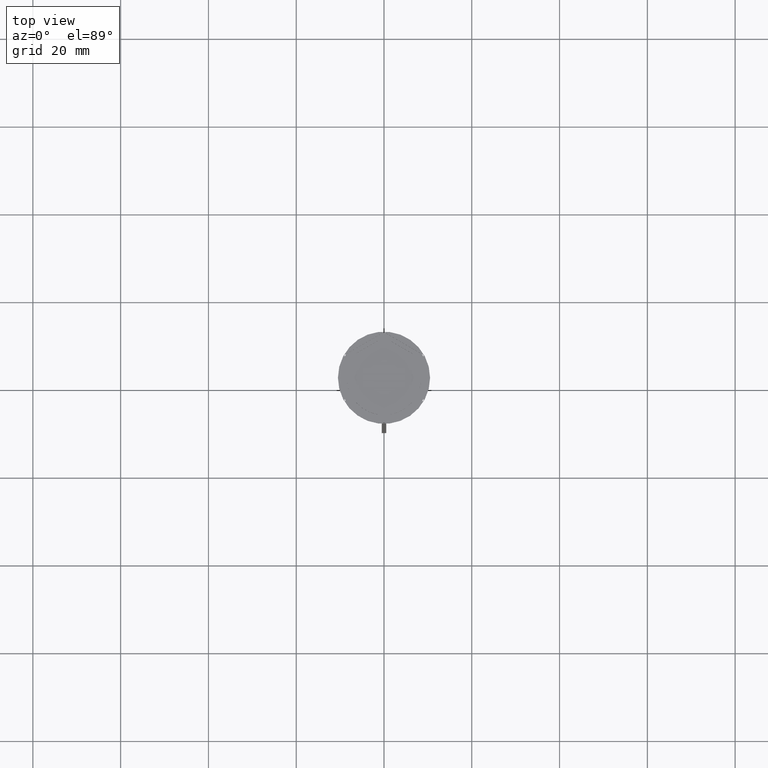
[diagram: clean part render]
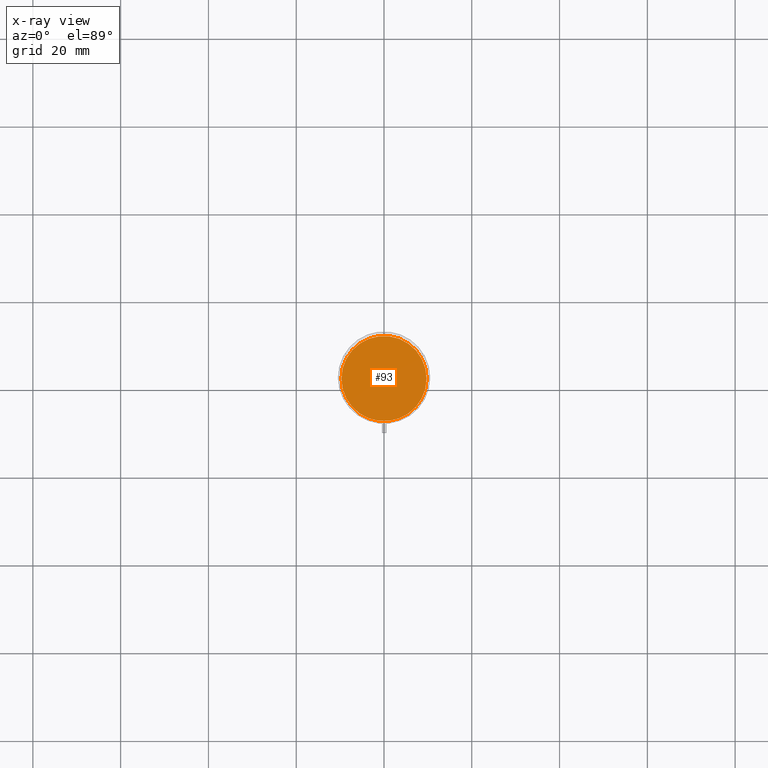
[diagram: x-ray — body ghosted, one internal face saturated and labeled with its STEP entity id]
A machine part, top view, then the same camera in x-ray: the body is ghosted and one INTERNAL B-rep face — a face not visible from any outside direction — is saturated and labeled: STEP entity #93.
In plain terms, the highlighted planar face has unit normal (0, 0, -1).
Its self-contained STEP definition (entity closure, byte-faithful):
#63 = EDGE_CURVE ( 'NONE', #842, #1588, #1096, .T. ) ;
#77 = CARTESIAN_POINT ( 'NONE',  ( 0.000000000000000000, 0.000000000000000000, -12.00000000000000000 ) ) ;
#93 = ADVANCED_FACE ( 'NONE', ( #2468 ), #710, .F. ) ;
#103 = DIRECTION ( 'NONE',  ( 0.000000000000000000, 0.000000000000000000, -1.000000000000000000 ) ) ;
#438 = EDGE_LOOP ( 'NONE', ( #1948, #510 ) ) ;
#485 = EDGE_CURVE ( 'NONE', #1588, #842, #2196, .T. ) ;
#510 = ORIENTED_EDGE ( 'NONE', *, *, #485, .T. ) ;
#710 = PLANE ( 'NONE',  #761 ) ;
#761 = AXIS2_PLACEMENT_3D ( 'NONE', #1880, #103, #1492 ) ;
#771 = CARTESIAN_POINT ( 'NONE',  ( 9.700000000000002842, 1.206277097160143024E-15, -12.00000000000000000 ) ) ;
#842 = VERTEX_POINT ( 'NONE', #919 ) ;
#910 = CARTESIAN_POINT ( 'NONE',  ( 0.000000000000000000, 0.000000000000000000, -12.00000000000000000 ) ) ;
#919 = CARTESIAN_POINT ( 'NONE',  ( -9.700000000000002842, 0.000000000000000000, -12.00000000000000000 ) ) ;
#1096 = CIRCLE ( 'NONE', #1843, 9.700000000000002842 ) ;
#1492 = DIRECTION ( 'NONE',  ( -1.000000000000000000, 0.000000000000000000, -0.000000000000000000 ) ) ;
#1588 = VERTEX_POINT ( 'NONE', #771 ) ;
#1702 = DIRECTION ( 'NONE',  ( -0.000000000000000000, -0.000000000000000000, 1.000000000000000000 ) ) ;
#1715 = AXIS2_PLACEMENT_3D ( 'NONE', #910, #1702, #2513 ) ;
#1843 = AXIS2_PLACEMENT_3D ( 'NONE', #77, #2087, #2096 ) ;
#1880 = CARTESIAN_POINT ( 'NONE',  ( 0.000000000000000000, 0.000000000000000000, -12.00000000000000000 ) ) ;
#1948 = ORIENTED_EDGE ( 'NONE', *, *, #63, .T. ) ;
#2087 = DIRECTION ( 'NONE',  ( -0.000000000000000000, -0.000000000000000000, 1.000000000000000000 ) ) ;
#2096 = DIRECTION ( 'NONE',  ( -1.000000000000000000, 0.000000000000000000, 0.000000000000000000 ) ) ;
#2196 = CIRCLE ( 'NONE', #1715, 9.700000000000002842 ) ;
#2468 = FACE_OUTER_BOUND ( 'NONE', #438, .T. ) ;
#2513 = DIRECTION ( 'NONE',  ( -1.000000000000000000, 0.000000000000000000, 0.000000000000000000 ) ) ;